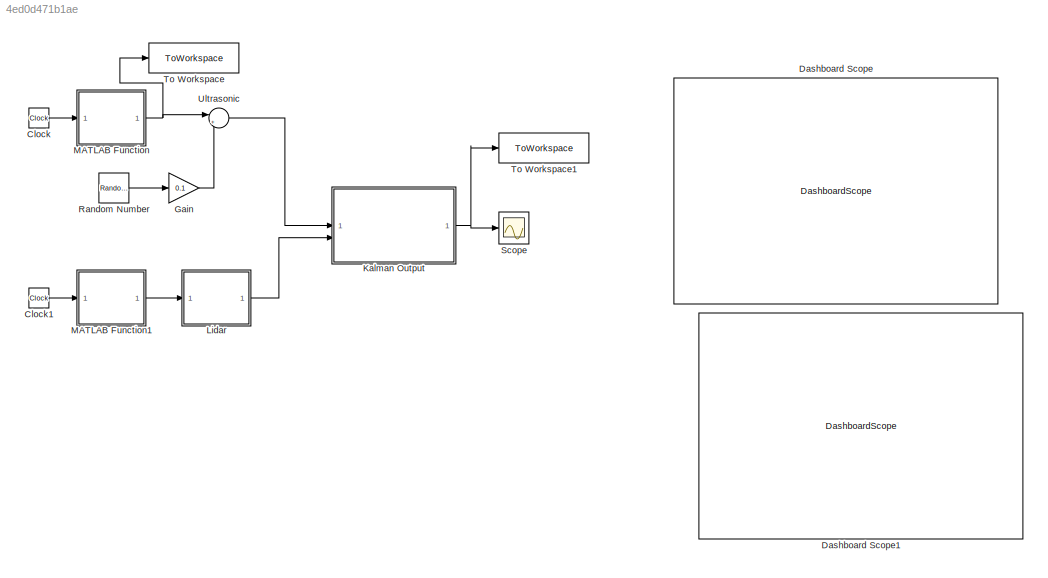
MODEL slx_4ed0d471b1ae
KIND model
CONFIG AbsTol = auto
CONFIG EnableMultiTasking = off
CONFIG FixedStep = auto
CONFIG MaxStep = auto
CONFIG MinStep = auto
CONFIG RelTol = 1e-3
CONFIG SampleTimeConstraint = Unconstrained
CONFIG SolverName = VariableStepAuto
CONFIG StartTime = 0.0
CONFIG StopTime = 10.0
BLOCK [Clock] Clock
BLOCK [Clock] Clock1
BLOCK [DashboardScope] Dashboard Scope
BLOCK [DashboardScope] Dashboard Scope1
BLOCK [Gain] Gain
  Gain = 0.1
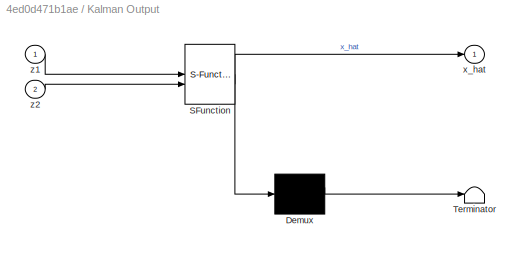
BLOCK [SubSystem] Kalman Output
  ErrorFcn = Stateflow.Translate.translate
  PermitHierarchicalResolution = ExplicitOnly
  SFBlockType = MATLAB Function
  TreatAsAtomicUnit = on
BLOCK [Demux] Kalman Output/ Demux 
  Outputs = 1
BLOCK [S-Function] Kalman Output/ SFunction 
  EnableBusSupport = on
  FunctionName = sf_sfun
  PortCounts = [2 2]
  SFcnIsStateOwnerBlock = off
  SFunctionDeploymentMode = off
  Tag = Stateflow S-Function 4
BLOCK [Terminator] Kalman Output/ Terminator 
BLOCK [Outport] Kalman Output/x_hat
BLOCK [Inport] Kalman Output/z1
BLOCK [Inport] Kalman Output/z2
  Port = 2
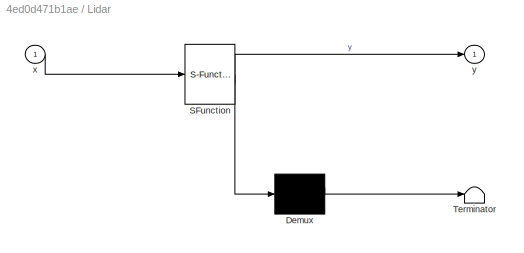
BLOCK [SubSystem] Lidar
  ErrorFcn = Stateflow.Translate.translate
  PermitHierarchicalResolution = ExplicitOnly
  SFBlockType = MATLAB Function
  TreatAsAtomicUnit = on
BLOCK [Demux] Lidar/ Demux 
  Outputs = 1
BLOCK [S-Function] Lidar/ SFunction 
  EnableBusSupport = on
  FunctionName = sf_sfun
  PortCounts = [1 2]
  SFcnIsStateOwnerBlock = off
  SFunctionDeploymentMode = off
  Tag = Stateflow S-Function 3
BLOCK [Terminator] Lidar/ Terminator 
BLOCK [Inport] Lidar/x
BLOCK [Outport] Lidar/y
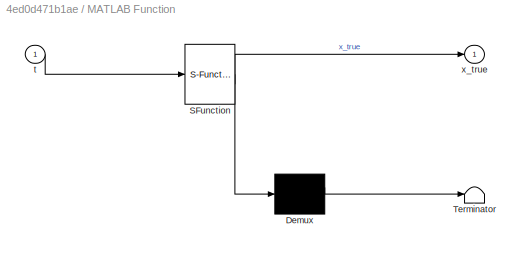
BLOCK [SubSystem] MATLAB Function
  ErrorFcn = Stateflow.Translate.translate
  PermitHierarchicalResolution = ExplicitOnly
  SFBlockType = MATLAB Function
  TreatAsAtomicUnit = on
BLOCK [Demux] MATLAB Function/ Demux 
  Outputs = 1
BLOCK [S-Function] MATLAB Function/ SFunction 
  EnableBusSupport = on
  FunctionName = sf_sfun
  PortCounts = [1 2]
  SFcnIsStateOwnerBlock = off
  SFunctionDeploymentMode = off
  Tag = Stateflow S-Function 2
BLOCK [Terminator] MATLAB Function/ Terminator 
BLOCK [Inport] MATLAB Function/t
BLOCK [Outport] MATLAB Function/x_true
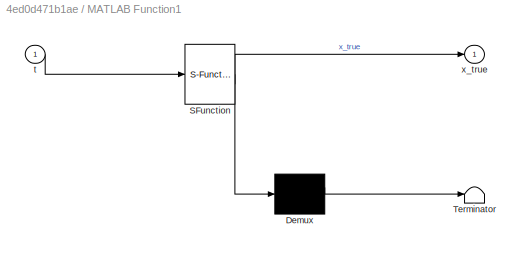
BLOCK [SubSystem] MATLAB Function1
  ErrorFcn = Stateflow.Translate.translate
  PermitHierarchicalResolution = ExplicitOnly
  SFBlockType = MATLAB Function
  TreatAsAtomicUnit = on
BLOCK [Demux] MATLAB Function1/ Demux 
  Outputs = 1
BLOCK [S-Function] MATLAB Function1/ SFunction 
  EnableBusSupport = on
  FunctionName = sf_sfun
  PortCounts = [1 2]
  SFcnIsStateOwnerBlock = off
  SFunctionDeploymentMode = off
  Tag = Stateflow S-Function 1
BLOCK [Terminator] MATLAB Function1/ Terminator 
BLOCK [Inport] MATLAB Function1/t
BLOCK [Outport] MATLAB Function1/x_true
BLOCK [RandomNumber] Random Number
  SampleTime = 0.1
BLOCK [Scope] Scope
  Floating = off
  NumInputPorts = 1
  ScopeSpecificationString = Simulink.scopes.TimeScopeBlockCfg('CurrentConfiguration', extmgr.ConfigurationSet(extmgr.Configuration('Core','General UI',true),extmgr.Configuration('Core','Source UI',true),extmgr.Configuration('Sources','WiredSimulink',true),extmgr.Configuration('Visuals','Time Domain',true,'SerializedDisplays',{struct('MinYLimReal','4.77434','MaxYLimReal','6.27206','YLabelReal','','MinYLimMag','4.77434','MaxYL...<+1453ch>
BLOCK [ToWorkspace] To Workspace
  FixptAsFi = on
  MaxDataPoints = inf
  SampleTime = -1
  SaveFormat = Timeseries
  VariableName = x_true
BLOCK [ToWorkspace] To Workspace1
  FixptAsFi = on
  MaxDataPoints = inf
  SampleTime = -1
  SaveFormat = Timeseries
  VariableName = x_est
BLOCK [Sum] Ultrasonic
  Inputs = |++
LINE Clock1:1 -> MATLAB Function1:1
LINE Clock:1 -> MATLAB Function:1
LINE Gain:1 -> Ultrasonic:2
NET Kalman Output:1 -> Scope:1, To Workspace1:1
LINE Lidar:1 -> Kalman Output:2
LINE MATLAB Function1:1 -> Lidar:1
NET MATLAB Function:1 -> To Workspace:1, Ultrasonic:1
LINE Random Number:1 -> Gain:1
LINE Ultrasonic:1 -> Kalman Output:1
note: NET lines group one-source signal fan-out (src -> all destinations, sorted); 1:1 wires keep LINE
CHART MATLAB Function states=1 transitions=1
  STATE_LABEL 'eML_blk_kernel()'
  STATE_LABEL 'SCRIPT:\nfunction x_true = stop_and_go(t)\n\nif t < 3\n    x_true = 6 - 0.5 * t;\nelseif t < 6\n    x_true = 4.5;\nelse\n    x_true = 4.5 - 0.2 * (t - 6);\nend\n\n'
CHART Lidar states=1 transitions=1
  STATE_LABEL 'eML_blk_kernel()'
  STATE_LABEL 'SCRIPT:\nfunction y = lidar_noise_model(x)\n% x: true distance\n% y: noisy LiDAR reading\n\n% Add small Gaussian noise\nnoise = 0.05 * randn();\n\n% Random spike (5% chance)\nif rand() < 0.05\n    spike = 2 * (rand() - 0.5);  % Random spike between -1 and 1\nelse\n    spike = 0;\nend\n\ny = x + noise + spike;\n'
CHART Kalman Output states=1 transitions=1
  STATE_LABEL 'eML_blk_kernel()'
  STATE_LABEL 'SCRIPT:\nfunction x_hat = kalmanFusion(z1, z2)\n\n%#codegen\n\npersistent x P Q R1 R2 H I\n\nif isempty(x)\n    x = 0;                      % Initial estimate\n    P = 1;                      % Initial error covariance\n    Q = 0.01;                   % Process noise\n    R1 = 0.05;                  % LiDAR noise\n    R2 = 0.1;                   % Ultrasonic noise\n    H = 1;                      % Measurement...<+381ch>'
CHART MATLAB Function1 states=1 transitions=1
  STATE_LABEL 'eML_blk_kernel()'
  STATE_LABEL 'SCRIPT:\nfunction x_true = stop_and_go(t)\n%#codegen\n\nif t < 3\n    x_true = 6 - 0.5 * t;\nelseif t < 6\n    x_true = 4.5; % stopped\nelse\n    x_true = 4.5 - 0.2 * (t - 6);\nend\n'
CHART  states=0 transitions=0
CHART  states=0 transitions=0
CHART  states=0 transitions=0
CHART  states=0 transitions=0
